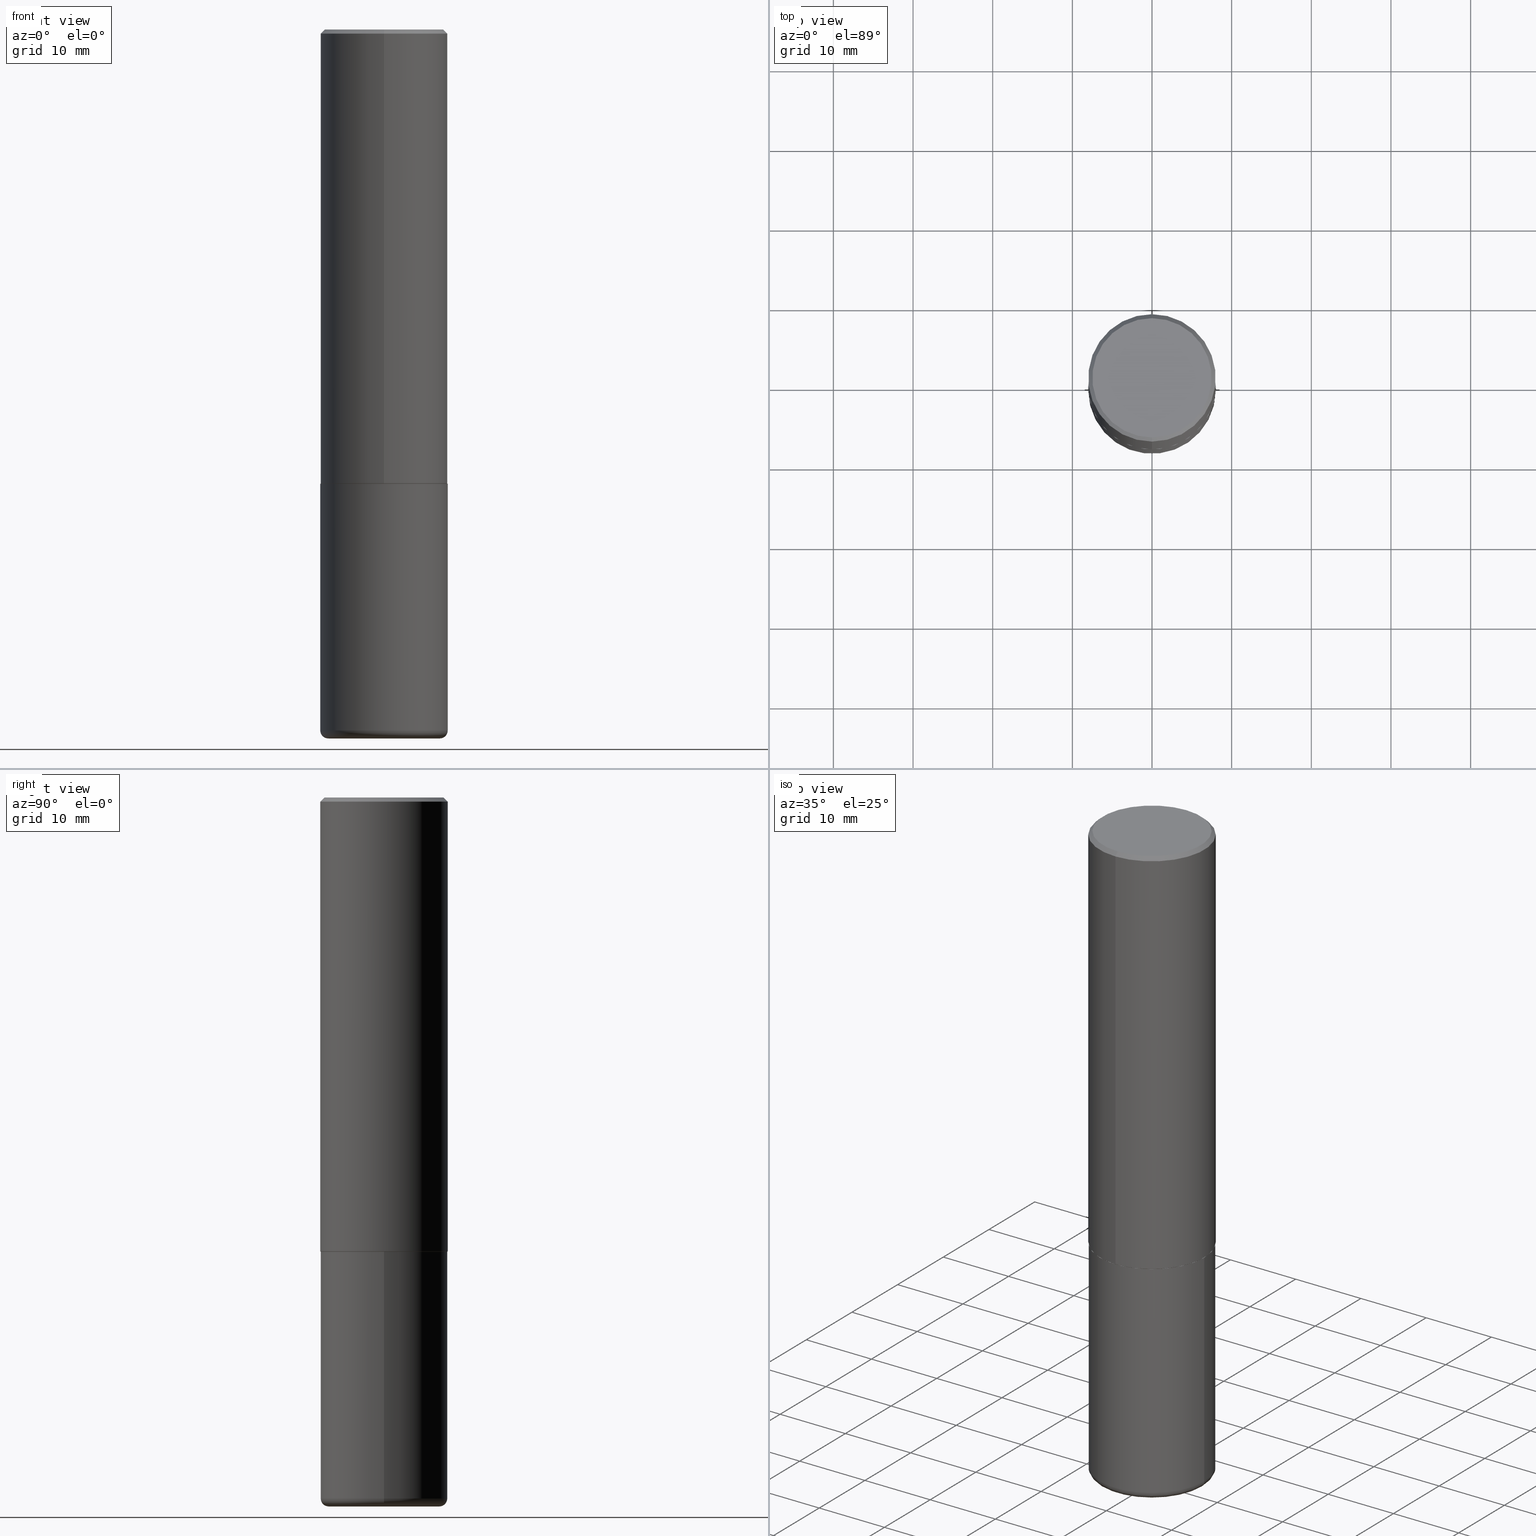
[diagram: canonical four-view strip — front | top / right | iso, engineering-drawing reading convention]
A machine part, canonical four-view strip (front | top / right | iso — engineering-drawing reading convention). The complete STEP part file that produces these views, byte-faithful:
ISO-10303-21;
HEADER;
FILE_DESCRIPTION (( 'STEP AP203' ),
    '1' );
FILE_NAME ('42687.STEP',
    '2024-03-04T01:46:12',
    ( '' ),
    ( '' ),
    'SwSTEP 2.0',
    'SolidWorks 2023',
    '' );
FILE_SCHEMA (( 'CONFIG_CONTROL_DESIGN' ));
ENDSEC;

DATA;
#1 = ADVANCED_FACE ( 'NONE', ( #273 ), #341, .T. ) ;
#2 = CARTESIAN_POINT ( 'NONE',  ( -0.3149500000000000077, -7.727880839183554507E-15, -2.244099999999999540 ) ) ;
#3 = DIRECTION ( 'NONE',  ( -6.982962677686264344E-15, -1.000000000000000000, 3.496670018878890283E-15 ) ) ;
#4 = EDGE_LOOP ( 'NONE', ( #164, #41, #327, #370 ) ) ;
#5 = AXIS2_PLACEMENT_3D ( 'NONE', #55, #384, #23 ) ;
#6 = CALENDAR_DATE ( 2024, 3, 3 ) ;
#7 = ORIENTED_EDGE ( 'NONE', *, *, #265, .F. ) ;
#8 = CYLINDRICAL_SURFACE ( 'NONE', #163, 0.3149500000000000632 ) ;
#9 = AXIS2_PLACEMENT_3D ( 'NONE', #307, #209, #336 ) ;
#10 = CARTESIAN_POINT ( 'NONE',  ( -2.192301132659548636E-15, -0.3139500000000078339, -2.244099999999998651 ) ) ;
#11 = CARTESIAN_POINT ( 'NONE',  ( -2.192301132659548636E-15, -0.3139500000000078339, -2.244099999999998651 ) ) ;
#12 = APPROVAL_DATE_TIME ( #174, #172 ) ;
#13 = DIRECTION ( 'NONE',  ( -6.982962677686265922E-15, -1.000000000000000000, 3.490574506274840456E-15 ) ) ;
#14 = AXIS2_PLACEMENT_3D ( 'NONE', #190, #411, #281 ) ;
#15 = PERSON_AND_ORGANIZATION_ROLE ( 'classification_officer' ) ;
#16 = ADVANCED_BREP_SHAPE_REPRESENTATION ( '42687', ( #211, #65, #101 ), #193 ) ;
#17 = DIRECTION ( 'NONE',  ( 2.438088387897960049E-29, -3.491481338843145188E-15, -1.000000000000000000 ) ) ;
#18 = ORIENTED_EDGE ( 'NONE', *, *, #173, .F. ) ;
#19 = EDGE_CURVE ( 'NONE', #197, #352, #405, .T. ) ;
#20 = DIRECTION ( 'NONE',  ( -6.982962677686265922E-15, -1.000000000000000000, 3.469564049740290009E-15 ) ) ;
#21 = AXIS2_PLACEMENT_3D ( 'NONE', #409, #178, #242 ) ;
#22 = EDGE_CURVE ( 'NONE', #161, #97, #153, .T. ) ;
#23 = DIRECTION ( 'NONE',  ( -6.982962677686265922E-15, -1.000000000000000000, 3.490574506274840456E-15 ) ) ;
#24 = CARTESIAN_POINT ( 'NONE',  ( 0.000000000000000000, 0.000000000000000000, 0.000000000000000000 ) ) ;
#25 = CARTESIAN_POINT ( 'NONE',  ( 0.2755500000000000171, -1.402039246425852851E-14, -3.464499999999999691 ) ) ;
#26 = AXIS2_PLACEMENT_3D ( 'NONE', #344, #279, #413 ) ;
#27 = DIRECTION ( 'NONE',  ( 2.438088387897960049E-29, -3.491481338843145188E-15, -1.000000000000000000 ) ) ;
#28 = EDGE_CURVE ( 'NONE', #244, #297, #83, .T. ) ;
#29 = DIRECTION ( 'NONE',  ( 2.446102043983075148E-29, -3.490574506274840456E-15, -1.000000000000000000 ) ) ;
#30 = ORIENTED_EDGE ( 'NONE', *, *, #39, .T. ) ;
#31 = SHAPE_DEFINITION_REPRESENTATION ( #99, #16 ) ;
#32 = DIRECTION ( 'NONE',  ( -2.446102043983075148E-29, 3.490574506274840456E-15, 1.000000000000000000 ) ) ;
#33 = APPROVAL_ROLE ( '' ) ;
#34 = CARTESIAN_POINT ( 'NONE',  ( 0.2755500000000000171, -1.415795682900894930E-14, -3.503899999999999793 ) ) ;
#35 = CONICAL_SURFACE ( 'NONE', #271, 0.3139500000000000068, 0.7853981633974141952 ) ;
#36 = ORIENTED_EDGE ( 'NONE', *, *, #154, .F. ) ;
#37 = LOCAL_TIME ( 20, 46, 12.00000000000000000, #80 ) ;
#38 = PERSON ( 'UNSPECIFIED', 'UNSPECIFIED', 'UNSPECIFIED', ('UNSPECIFIED'), ('UNSPECIFIED'), ('UNSPECIFIED') ) ;
#39 = EDGE_CURVE ( 'NONE', #314, #397, #386, .T. ) ;
#40 = DIRECTION ( 'NONE',  ( -6.982962677686265922E-15, -1.000000000000000000, 3.490574506274840456E-15 ) ) ;
#41 = ORIENTED_EDGE ( 'NONE', *, *, #199, .T. ) ;
#42 = CARTESIAN_POINT ( 'NONE',  ( 4.892204087966167602E-31, -6.981149012549705614E-17, -0.02000000000000006981 ) ) ;
#43 = PERSON_AND_ORGANIZATION ( #38, #157 ) ;
#44 = VERTEX_POINT ( 'NONE', #114 ) ;
#45 = ORIENTED_EDGE ( 'NONE', *, *, #235, .T. ) ;
#46 = DATE_TIME_ROLE ( 'creation_date' ) ;
#47 = DIRECTION ( 'NONE',  ( -2.446102043983075148E-29, 3.490574506274840456E-15, 1.000000000000000000 ) ) ;
#48 = COORDINATED_UNIVERSAL_TIME_OFFSET ( 5, 0, .BEHIND. ) ;
#49 = ORIENTED_EDGE ( 'NONE', *, *, #130, .F. ) ;
#50 = CARTESIAN_POINT ( 'NONE',  ( 8.568678149992099474E-29, -1.223380146317249786E-14, -3.503899999999999793 ) ) ;
#51 = DIRECTION ( 'NONE',  ( -2.445468806185136597E-29, 3.491481338843145583E-15, 1.000000000000000000 ) ) ;
#52 = CARTESIAN_POINT ( 'NONE',  ( -2.160713844398142179E-15, -0.3149499999999999522, -0.01999999999999896652 ) ) ;
#53 = ADVANCED_FACE ( 'NONE', ( #298 ), #239, .F. ) ;
#54 = AXIS2_PLACEMENT_3D ( 'NONE', #311, #188, #162 ) ;
#55 = CARTESIAN_POINT ( 'NONE',  ( -6.780248536777034301E-45, 9.675378321561535985E-31, 2.771858415905051370E-16 ) ) ;
#56 = ORIENTED_EDGE ( 'NONE', *, *, #261, .F. ) ;
#57 = CARTESIAN_POINT ( 'NONE',  ( 2.237854346276435590E-15, 0.3149500000000000632, -1.099356440751261260E-15 ) ) ;
#58 = ORIENTED_EDGE ( 'NONE', *, *, #342, .T. ) ;
#59 = EDGE_CURVE ( 'NONE', #197, #244, #347, .T. ) ;
#60 = DIRECTION ( 'NONE',  ( -1.000000000000000000, 7.105427357601014480E-15, 0.000000000000000000 ) ) ;
#61 = AXIS2_PLACEMENT_3D ( 'NONE', #124, #92, #382 ) ;
#62 = APPLICATION_PROTOCOL_DEFINITION ( 'international standard', 'config_control_design', 1994, #410 ) ;
#63 = DIRECTION ( 'NONE',  ( 1.000000000000000000, -6.982962677686266711E-15, 0.000000000000000000 ) ) ;
#64 = CC_DESIGN_PERSON_AND_ORGANIZATION_ASSIGNMENT ( #241, #15, ( #259 ) ) ;
#65 = MANIFOLD_SOLID_BREP ( 'Body-Move/Copy2[2]', #331 ) ;
#66 = CYLINDRICAL_SURFACE ( 'NONE', #395, 0.3149500000000000077 ) ;
#67 = ORIENTED_EDGE ( 'NONE', *, *, #261, .T. ) ;
#68 = FACE_OUTER_BOUND ( 'NONE', #249, .T. ) ;
#69 = CONICAL_SURFACE ( 'NONE', #303, 0.3149499999999998967, 0.7853981633974471688 ) ;
#70 = DIMENSIONAL_EXPONENTS ( 1.000000000000000000, 0.000000000000000000, 0.000000000000000000, 0.000000000000000000, 0.000000000000000000, 0.000000000000000000, 0.000000000000000000 ) ;
#71 = CC_DESIGN_SECURITY_CLASSIFICATION ( #259, ( #139 ) ) ;
#72 = CARTESIAN_POINT ( 'NONE',  ( 0.000000000000000000, 0.000000000000000000, 0.000000000000000000 ) ) ;
#73 = ORIENTED_EDGE ( 'NONE', *, *, #215, .T. ) ;
#74 = ADVANCED_FACE ( 'NONE', ( #81 ), #115, .F. ) ;
#75 = APPROVAL_DATE_TIME ( #146, #321 ) ;
#76 = DIRECTION ( 'NONE',  ( -2.445468806185136877E-29, 3.491481338843145188E-15, 1.000000000000000000 ) ) ;
#77 = CIRCLE ( 'NONE', #206, 0.3149500000000002853 ) ;
#78 = APPROVAL_STATUS ( 'not_yet_approved' ) ;
#79 = DIRECTION ( 'NONE',  ( -2.446102043983074868E-29, 3.490574506274840456E-15, 1.000000000000000000 ) ) ;
#80 = COORDINATED_UNIVERSAL_TIME_OFFSET ( 5, 0, .BEHIND. ) ;
#81 = FACE_OUTER_BOUND ( 'NONE', #300, .T. ) ;
#82 = DATE_AND_TIME ( #372, #37 ) ;
#83 = LINE ( 'NONE', #145, #361 ) ;
#84 = AXIS2_PLACEMENT_3D ( 'NONE', #340, #79, #13 ) ;
#85 = CIRCLE ( 'NONE', #5, 0.2949499999999996014 ) ;
#86 = APPROVAL_PERSON_ORGANIZATION ( #299, #172, #408 ) ;
#87 = CC_DESIGN_PERSON_AND_ORGANIZATION_ASSIGNMENT ( #43, #404, ( #139 ) ) ;
#88 = DIRECTION ( 'NONE',  ( 1.000000000000000000, -6.982962677686268288E-15, 0.000000000000000000 ) ) ;
#89 = CARTESIAN_POINT ( 'NONE',  ( -0.3149500000000000077, -9.858382752145642660E-15, -3.464500000000000135 ) ) ;
#90 = ORIENTED_EDGE ( 'NONE', *, *, #112, .T. ) ;
#91 = PRODUCT ( '42687', '42687', '', ( #337 ) ) ;
#92 = DIRECTION ( 'NONE',  ( -2.446102043983075148E-29, 3.490574506274840456E-15, 1.000000000000000000 ) ) ;
#93 = ORIENTED_EDGE ( 'NONE', *, *, #28, .T. ) ;
#94 = CIRCLE ( 'NONE', #149, 0.2755500000000000171 ) ;
#95 = AXIS2_PLACEMENT_3D ( 'NONE', #348, #27, #310 ) ;
#96 = FACE_OUTER_BOUND ( 'NONE', #180, .T. ) ;
#97 = VERTEX_POINT ( 'NONE', #371 ) ;
#98 = CARTESIAN_POINT ( 'NONE',  ( 8.568678149992099474E-29, -1.223380146317249786E-14, -3.503899999999999793 ) ) ;
#99 = PRODUCT_DEFINITION_SHAPE ( 'NONE', 'NONE',  #133 ) ;
#100 = CARTESIAN_POINT ( 'NONE',  ( 0.3149500000000000077, -1.003451736783519063E-14, -2.244099999999999540 ) ) ;
#101 = AXIS2_PLACEMENT_3D ( 'NONE', #391, #105, #266 ) ;
#102 =( NAMED_UNIT ( * ) PLANE_ANGLE_UNIT ( ) SI_UNIT ( $, .RADIAN. ) );
#103 = LINE ( 'NONE', #286, #416 ) ;
#104 = CC_DESIGN_DATE_AND_TIME_ASSIGNMENT ( #274, #46, ( #133 ) ) ;
#105 = DIRECTION ( 'NONE',  ( 0.000000000000000000, 0.000000000000000000, 1.000000000000000000 ) ) ;
#106 = DESIGN_CONTEXT ( 'detailed design', #111, 'design' ) ;
#107 = APPROVAL ( #223, 'UNSPECIFIED' ) ;
#108 = CARTESIAN_POINT ( 'NONE',  ( 4.892204087966167602E-31, -6.981149012549705614E-17, -0.02000000000000006981 ) ) ;
#109 = AXIS2_PLACEMENT_3D ( 'NONE', #318, #417, #256 ) ;
#110 = ORIENTED_EDGE ( 'NONE', *, *, #173, .T. ) ;
#111 = APPLICATION_CONTEXT ( 'configuration controlled 3d designs of mechanical parts and assemblies' ) ;
#112 = EDGE_CURVE ( 'NONE', #295, #161, #374, .T. ) ;
#113 = PERSON_AND_ORGANIZATION ( #38, #157 ) ;
#114 = CARTESIAN_POINT ( 'NONE',  ( -0.2755500000000000171, -1.006714185346559079E-14, -3.503899999999999793 ) ) ;
#115 = PLANE ( 'NONE',  #21 ) ;
#116 = CIRCLE ( 'NONE', #221, 0.03940000000000005997 ) ;
#117 = APPROVAL_PERSON_ORGANIZATION ( #127, #107, #33 ) ;
#118 = SECURITY_CLASSIFICATION_LEVEL ( 'unclassified' ) ;
#119 = DIRECTION ( 'NONE',  ( -4.937700262164378437E-15, -0.7071067811865208164, 0.7071067811865739960 ) ) ;
#120 = PERSON_AND_ORGANIZATION_ROLE ( 'creator' ) ;
#121 = ORIENTED_EDGE ( 'NONE', *, *, #19, .T. ) ;
#122 = CARTESIAN_POINT ( 'NONE',  ( 8.472326679028406000E-29, -1.209623709842207864E-14, -3.464500000000000135 ) ) ;
#123 = VECTOR ( 'NONE', #284, 39.37007874015748143 ) ;
#124 = CARTESIAN_POINT ( 'NONE',  ( 5.486851494858434265E-29, -7.829707675025093274E-15, -2.243099999999999206 ) ) ;
#125 = ORIENTED_EDGE ( 'NONE', *, *, #235, .F. ) ;
#126 = DIRECTION ( 'NONE',  ( -6.982962677686266711E-15, -1.000000000000000000, 3.491481338843145583E-15 ) ) ;
#127 = PERSON_AND_ORGANIZATION ( #38, #157 ) ;
#128 = CARTESIAN_POINT ( 'NONE',  ( 2.199284095337288688E-15, 0.3149499999999997857, -0.02000000000000116962 ) ) ;
#129 = ORIENTED_EDGE ( 'NONE', *, *, #182, .F. ) ;
#130 = EDGE_CURVE ( 'NONE', #272, #285, #245, .T. ) ;
#131 = AXIS2_PLACEMENT_3D ( 'NONE', #98, #134, #192 ) ;
#132 = LINE ( 'NONE', #160, #123 ) ;
#133 = PRODUCT_DEFINITION ( 'UNKNOWN', '', #139, #106 ) ;
#134 = DIRECTION ( 'NONE',  ( -2.445468806185136597E-29, 3.491481338843145583E-15, 1.000000000000000000 ) ) ;
#135 = FACE_OUTER_BOUND ( 'NONE', #4, .T. ) ;
#136 = AXIS2_PLACEMENT_3D ( 'NONE', #338, #47, #246 ) ;
#137 = AXIS2_PLACEMENT_3D ( 'NONE', #288, #231, #396 ) ;
#138 = CARTESIAN_POINT ( 'NONE',  ( 5.489297596902418618E-29, -7.833198249531369174E-15, -2.244099999999999540 ) ) ;
#139 = PRODUCT_DEFINITION_FORMATION_WITH_SPECIFIED_SOURCE ( 'ANY', '', #91, .NOT_KNOWN. ) ;
#140 = EDGE_LOOP ( 'NONE', ( #7, #378 ) ) ;
#141 =( LENGTH_UNIT ( ) NAMED_UNIT ( * ) SI_UNIT ( $, .METRE. ) );
#142 = FACE_OUTER_BOUND ( 'NONE', #238, .T. ) ;
#143 = ORIENTED_EDGE ( 'NONE', *, *, #240, .F. ) ;
#144 = ADVANCED_FACE ( 'NONE', ( #302 ), #150, .F. ) ;
#145 = CARTESIAN_POINT ( 'NONE',  ( 0.3149500000000000077, -2.199284095337289871E-15, 1.535751875536930130E-29 ) ) ;
#146 = DATE_AND_TIME ( #179, #291 ) ;
#147 = DIRECTION ( 'NONE',  ( -2.445468806185136597E-29, 3.491481338843145583E-15, 1.000000000000000000 ) ) ;
#148 = PERSON_AND_ORGANIZATION ( #38, #157 ) ;
#149 = AXIS2_PLACEMENT_3D ( 'NONE', #50, #375, #88 ) ;
#150 = PLANE ( 'NONE',  #167 ) ;
#151 = ORIENTED_EDGE ( 'NONE', *, *, #59, .T. ) ;
#152 = COORDINATED_UNIVERSAL_TIME_OFFSET ( 5, 0, .BEHIND. ) ;
#153 = LINE ( 'NONE', #11, #282 ) ;
#154 = EDGE_CURVE ( 'NONE', #44, #355, #94, .T. ) ;
#155 = DIRECTION ( 'NONE',  ( -2.446102043983075148E-29, 3.490574506274840456E-15, 1.000000000000000000 ) ) ;
#156 = VECTOR ( 'NONE', #398, 39.37007874015748143 ) ;
#157 = ORGANIZATION ( 'UNSPECIFIED', 'UNSPECIFIED', '' ) ;
#158 = CC_DESIGN_APPROVAL ( #321, ( #133 ) ) ;
#159 = CARTESIAN_POINT ( 'NONE',  ( 2.199284095337288688E-15, 0.3149499999999997857, -0.02000000000000116962 ) ) ;
#160 = CARTESIAN_POINT ( 'NONE',  ( -2.160713844398142179E-15, -0.3149499999999999522, -0.01999999999999896652 ) ) ;
#161 = VERTEX_POINT ( 'NONE', #10 ) ;
#162 = DIRECTION ( 'NONE',  ( 1.000000000000000000, -6.982962677686266711E-15, 0.000000000000000000 ) ) ;
#163 = AXIS2_PLACEMENT_3D ( 'NONE', #165, #232, #40 ) ;
#164 = ORIENTED_EDGE ( 'NONE', *, *, #187, .F. ) ;
#165 = CARTESIAN_POINT ( 'NONE',  ( 0.000000000000000000, 0.000000000000000000, 0.000000000000000000 ) ) ;
#166 = LENGTH_MEASURE_WITH_UNIT ( LENGTH_MEASURE( 0.02539999999999999897 ), #141 );
#167 = AXIS2_PLACEMENT_3D ( 'NONE', #210, #17, #216 ) ;
#168 = CIRCLE ( 'NONE', #26, 0.3139500000000000068 ) ;
#169 = COORDINATED_UNIVERSAL_TIME_OFFSET ( 5, 0, .BEHIND. ) ;
#170 = ORIENTED_EDGE ( 'NONE', *, *, #350, .F. ) ;
#171 = FACE_OUTER_BOUND ( 'NONE', #280, .T. ) ;
#172 = APPROVAL ( #177, 'UNSPECIFIED' ) ;
#173 = EDGE_CURVE ( 'NONE', #360, #272, #268, .T. ) ;
#174 = DATE_AND_TIME ( #301, #403 ) ;
#175 = ORIENTED_EDGE ( 'NONE', *, *, #182, .T. ) ;
#176 = EDGE_CURVE ( 'NONE', #97, #360, #230, .T. ) ;
#177 = APPROVAL_STATUS ( 'not_yet_approved' ) ;
#178 = DIRECTION ( 'NONE',  ( 2.446102043983074868E-29, -3.490574506274840456E-15, -1.000000000000000000 ) ) ;
#179 = CALENDAR_DATE ( 2024, 3, 3 ) ;
#180 = EDGE_LOOP ( 'NONE', ( #67, #45, #143, #220 ) ) ;
#181 = ORIENTED_EDGE ( 'NONE', *, *, #39, .F. ) ;
#182 = EDGE_CURVE ( 'NONE', #297, #352, #247, .T. ) ;
#183 = CARTESIAN_POINT ( 'NONE',  ( 2.129454468560424995E-15, 0.2949499999999996014, -7.523591090352575511E-16 ) ) ;
#184 = DIRECTION ( 'NONE',  ( -2.446102043983075148E-29, 3.490574506274840456E-15, 1.000000000000000000 ) ) ;
#185 = CC_DESIGN_PERSON_AND_ORGANIZATION_ASSIGNMENT ( #148, #203, ( #139 ) ) ;
#186 = VECTOR ( 'NONE', #248, 39.37007874015748143 ) ;
#187 = EDGE_CURVE ( 'NONE', #397, #314, #85, .T. ) ;
#188 = DIRECTION ( 'NONE',  ( -2.445468806185136597E-29, 3.491481338843145583E-15, 1.000000000000000000 ) ) ;
#189 = EDGE_LOOP ( 'NONE', ( #56, #36 ) ) ;
#190 = CARTESIAN_POINT ( 'NONE',  ( 5.489297596902418618E-29, -7.833198249531369174E-15, -2.244099999999999540 ) ) ;
#191 = ORIENTED_EDGE ( 'NONE', *, *, #22, .F. ) ;
#192 = DIRECTION ( 'NONE',  ( 1.000000000000000000, -6.982962677686268288E-15, 0.000000000000000000 ) ) ;
#193 =( GEOMETRIC_REPRESENTATION_CONTEXT ( 3 ) GLOBAL_UNCERTAINTY_ASSIGNED_CONTEXT ( ( #343 ) ) GLOBAL_UNIT_ASSIGNED_CONTEXT ( ( #196, #102, #293 ) ) REPRESENTATION_CONTEXT ( 'NONE', 'WORKASPACE' ) );
#194 = CARTESIAN_POINT ( 'NONE',  ( 4.892204087966167602E-31, -6.981149012549705614E-17, -0.02000000000000006981 ) ) ;
#195 = EDGE_LOOP ( 'NONE', ( #317, #181, #225, #229 ) ) ;
#196 =( CONVERSION_BASED_UNIT ( 'INCH', #166 ) LENGTH_UNIT ( ) NAMED_UNIT ( #70 ) );
#197 = VERTEX_POINT ( 'NONE', #89 ) ;
#198 = CIRCLE ( 'NONE', #109, 0.3149500000000000077 ) ;
#199 = EDGE_CURVE ( 'NONE', #397, #285, #132, .T. ) ;
#200 = EDGE_LOOP ( 'NONE', ( #262, #58, #323, #191 ) ) ;
#201 = ADVANCED_FACE ( 'NONE', ( #219 ), #351, .T. ) ;
#202 = DIRECTION ( 'NONE',  ( 1.000000000000000000, -6.982962677686266711E-15, 4.876176775795936353E-29 ) ) ;
#203 = PERSON_AND_ORGANIZATION_ROLE ( 'creator' ) ;
#204 = AXIS2_PLACEMENT_3D ( 'NONE', #269, #51, #309 ) ;
#205 = COORDINATED_UNIVERSAL_TIME_OFFSET ( 5, 0, .BEHIND. ) ;
#206 = AXIS2_PLACEMENT_3D ( 'NONE', #228, #354, #20 ) ;
#207 = DIRECTION ( 'NONE',  ( -6.982962677686265922E-15, -1.000000000000000000, 3.490574506274840456E-15 ) ) ;
#208 = EDGE_CURVE ( 'NONE', #314, #272, #226, .T. ) ;
#209 = DIRECTION ( 'NONE',  ( -2.446102043983075148E-29, 3.490574506274840456E-15, 1.000000000000000000 ) ) ;
#210 = CARTESIAN_POINT ( 'NONE',  ( 5.487876547960064752E-29, -7.835233272497900762E-15, -2.244099999999999540 ) ) ;
#211 = MANIFOLD_SOLID_BREP ( 'Body-Move/Copy2[1]', #276 ) ;
#212 = DATE_TIME_ROLE ( 'classification_date' ) ;
#213 = CARTESIAN_POINT ( 'NONE',  ( -6.780248536777034301E-45, 9.675378321561535985E-31, 2.771858415905051370E-16 ) ) ;
#214 = CONICAL_SURFACE ( 'NONE', #339, 0.3149499999999998967, 0.7853981633974471688 ) ;
#215 = EDGE_CURVE ( 'NONE', #355, #244, #283, .T. ) ;
#216 = DIRECTION ( 'NONE',  ( -1.000000000000000000, 6.982962677686265922E-15, -4.876176775795935793E-29 ) ) ;
#217 = LINE ( 'NONE', #377, #255 ) ;
#218 = ADVANCED_FACE ( 'NONE', ( #412 ), #381, .T. ) ;
#219 = FACE_OUTER_BOUND ( 'NONE', #189, .T. ) ;
#220 = ORIENTED_EDGE ( 'NONE', *, *, #215, .F. ) ;
#221 = AXIS2_PLACEMENT_3D ( 'NONE', #418, #278, #60 ) ;
#222 = CIRCLE ( 'NONE', #312, 0.3149500000000000077 ) ;
#223 = APPROVAL_STATUS ( 'not_yet_approved' ) ;
#224 = DIRECTION ( 'NONE',  ( 1.000000000000000000, -6.982962677686268288E-15, 4.883557194083114022E-29 ) ) ;
#225 = ORIENTED_EDGE ( 'NONE', *, *, #208, .T. ) ;
#226 = LINE ( 'NONE', #159, #186 ) ;
#227 = ADVANCED_FACE ( 'NONE', ( #96 ), #290, .T. ) ;
#228 = CARTESIAN_POINT ( 'NONE',  ( 5.486851494858434265E-29, -7.829707675025093274E-15, -2.243099999999999206 ) ) ;
#229 = ORIENTED_EDGE ( 'NONE', *, *, #130, .T. ) ;
#230 = CIRCLE ( 'NONE', #61, 0.3149500000000002853 ) ;
#231 = DIRECTION ( 'NONE',  ( -2.445468806185136597E-29, 3.491481338843145583E-15, 1.000000000000000000 ) ) ;
#232 = DIRECTION ( 'NONE',  ( -2.446102043983075148E-29, 3.490574506274840456E-15, 1.000000000000000000 ) ) ;
#233 = ORIENTED_EDGE ( 'NONE', *, *, #306, .T. ) ;
#234 = FACE_OUTER_BOUND ( 'NONE', #195, .T. ) ;
#235 = EDGE_CURVE ( 'NONE', #44, #197, #116, .T. ) ;
#236 = AXIS2_PLACEMENT_3D ( 'NONE', #25, #126, #316 ) ;
#237 = DIRECTION ( 'NONE',  ( -2.445468806185136597E-29, 3.491481338843145583E-15, 1.000000000000000000 ) ) ;
#238 = EDGE_LOOP ( 'NONE', ( #125, #366, #73, #358 ) ) ;
#239 = PLANE ( 'NONE',  #84 ) ;
#240 = EDGE_CURVE ( 'NONE', #244, #197, #198, .T. ) ;
#241 = PERSON_AND_ORGANIZATION ( #38, #157 ) ;
#242 = DIRECTION ( 'NONE',  ( 6.982962677686265922E-15, 1.000000000000000000, -3.490574506274840456E-15 ) ) ;
#243 = CALENDAR_DATE ( 2024, 3, 3 ) ;
#244 = VERTEX_POINT ( 'NONE', #253 ) ;
#245 = CIRCLE ( 'NONE', #136, 0.3149499999999998967 ) ;
#246 = DIRECTION ( 'NONE',  ( -6.982962677686264344E-15, -1.000000000000000000, 3.496670018878890283E-15 ) ) ;
#247 = CIRCLE ( 'NONE', #54, 0.3149500000000000077 ) ;
#248 = DIRECTION ( 'NONE',  ( 4.937700262164541731E-15, 0.7071067811865442421, -0.7071067811865507924 ) ) ;
#249 = EDGE_LOOP ( 'NONE', ( #18, #233, #264, #49 ) ) ;
#250 = CYLINDRICAL_SURFACE ( 'NONE', #349, 0.3149500000000000632 ) ;
#251 = ADVANCED_FACE ( 'NONE', ( #383 ), #250, .T. ) ;
#252 = ORIENTED_EDGE ( 'NONE', *, *, #306, .F. ) ;
#253 = CARTESIAN_POINT ( 'NONE',  ( 0.3149500000000000077, -1.429552119375937009E-14, -3.464500000000000135 ) ) ;
#254 = CC_DESIGN_DATE_AND_TIME_ASSIGNMENT ( #82, #212, ( #259 ) ) ;
#255 = VECTOR ( 'NONE', #184, 39.37007874015748143 ) ;
#256 = DIRECTION ( 'NONE',  ( 1.000000000000000000, -6.982962677686269866E-15, 0.000000000000000000 ) ) ;
#257 = DIRECTION ( 'NONE',  ( -2.445468806185136597E-29, 3.491481338843145583E-15, 1.000000000000000000 ) ) ;
#258 = ORIENTED_EDGE ( 'NONE', *, *, #28, .F. ) ;
#259 = SECURITY_CLASSIFICATION ( '', '', #118 ) ;
#260 = DIRECTION ( 'NONE',  ( -6.982962677686266711E-15, -1.000000000000000000, 3.480615376543096919E-15 ) ) ;
#261 = EDGE_CURVE ( 'NONE', #355, #44, #356, .T. ) ;
#262 = ORIENTED_EDGE ( 'NONE', *, *, #265, .T. ) ;
#263 = APPROVAL_DATE_TIME ( #292, #107 ) ;
#264 = ORIENTED_EDGE ( 'NONE', *, *, #287, .T. ) ;
#265 = EDGE_CURVE ( 'NONE', #161, #295, #168, .T. ) ;
#266 = DIRECTION ( 'NONE',  ( 1.000000000000000000, 0.000000000000000000, 0.000000000000000000 ) ) ;
#267 = TOROIDAL_SURFACE ( 'NONE', #137, 0.2755500000000000171, 0.03940000000000005997 ) ;
#268 = LINE ( 'NONE', #57, #380 ) ;
#269 = CARTESIAN_POINT ( 'NONE',  ( 0.000000000000000000, 0.000000000000000000, 0.000000000000000000 ) ) ;
#270 = AXIS2_PLACEMENT_3D ( 'NONE', #122, #147, #400 ) ;
#271 = AXIS2_PLACEMENT_3D ( 'NONE', #138, #324, #260 ) ;
#272 = VERTEX_POINT ( 'NONE', #128 ) ;
#273 = FACE_OUTER_BOUND ( 'NONE', #394, .T. ) ;
#274 = DATE_AND_TIME ( #243, #313 ) ;
#275 = DIRECTION ( 'NONE',  ( -2.446102043983075148E-29, 3.490574506274840456E-15, 1.000000000000000000 ) ) ;
#276 = CLOSED_SHELL ( 'NONE', ( #1, #227, #144, #414, #407, #201 ) ) ;
#277 = DIRECTION ( 'NONE',  ( -6.982962677686265922E-15, -1.000000000000000000, 3.490574506274840456E-15 ) ) ;
#278 = DIRECTION ( 'NONE',  ( 7.105427357601001859E-15, 1.000000000000000000, -3.491481338843145583E-15 ) ) ;
#279 = DIRECTION ( 'NONE',  ( -2.446102043983075148E-29, 3.490574506274840456E-15, 1.000000000000000000 ) ) ;
#280 = EDGE_LOOP ( 'NONE', ( #368, #151, #93, #170 ) ) ;
#281 = DIRECTION ( 'NONE',  ( -6.982962677686266711E-15, -1.000000000000000000, 3.480615376543096919E-15 ) ) ;
#282 = VECTOR ( 'NONE', #119, 39.37007874015748854 ) ;
#283 = CIRCLE ( 'NONE', #236, 0.03940000000000005997 ) ;
#284 = DIRECTION ( 'NONE',  ( -4.851104656540957964E-15, -0.7071067811865491270, -0.7071067811865459074 ) ) ;
#285 = VERTEX_POINT ( 'NONE', #52 ) ;
#286 = CARTESIAN_POINT ( 'NONE',  ( 2.230748918918889014E-15, 0.3139499999999921798, -2.244100000000000872 ) ) ;
#287 = EDGE_CURVE ( 'NONE', #97, #285, #217, .T. ) ;
#288 = CARTESIAN_POINT ( 'NONE',  ( 8.472326679028403758E-29, -1.209623709842207707E-14, -3.464499999999999691 ) ) ;
#289 = ORIENTED_EDGE ( 'NONE', *, *, #315, .F. ) ;
#290 = TOROIDAL_SURFACE ( 'NONE', #362, 0.2755500000000000171, 0.03940000000000005997 ) ;
#291 = LOCAL_TIME ( 20, 46, 12.00000000000000000, #152 ) ;
#292 = DATE_AND_TIME ( #6, #363 ) ;
#293 =( NAMED_UNIT ( * ) SI_UNIT ( $, .STERADIAN. ) SOLID_ANGLE_UNIT ( ) );
#294 = EDGE_LOOP ( 'NONE', ( #406, #110, #289, #319 ) ) ;
#295 = VERTEX_POINT ( 'NONE', #320 ) ;
#296 = CARTESIAN_POINT ( 'NONE',  ( -2.092108864420426059E-15, -0.2949499999999996014, 1.306730792216267924E-15 ) ) ;
#297 = VERTEX_POINT ( 'NONE', #100 ) ;
#298 = FACE_OUTER_BOUND ( 'NONE', #140, .T. ) ;
#299 = PERSON_AND_ORGANIZATION ( #38, #157 ) ;
#300 = EDGE_LOOP ( 'NONE', ( #30, #415 ) ) ;
#301 = CALENDAR_DATE ( 2024, 3, 3 ) ;
#302 = FACE_OUTER_BOUND ( 'NONE', #390, .T. ) ;
#303 = AXIS2_PLACEMENT_3D ( 'NONE', #194, #389, #325 ) ;
#304 = PERSON_AND_ORGANIZATION ( #38, #157 ) ;
#305 = CC_DESIGN_APPROVAL ( #107, ( #259 ) ) ;
#306 = EDGE_CURVE ( 'NONE', #360, #97, #77, .T. ) ;
#307 = CARTESIAN_POINT ( 'NONE',  ( 5.489297596902418618E-29, -7.833198249531369174E-15, -2.244099999999999540 ) ) ;
#308 = APPLICATION_PROTOCOL_DEFINITION ( 'international standard', 'config_control_design', 1994, #111 ) ;
#309 = DIRECTION ( 'NONE',  ( 1.000000000000000000, -6.982962677686266711E-15, 4.876176775795936353E-29 ) ) ;
#310 = DIRECTION ( 'NONE',  ( -1.000000000000000000, 6.982962677686265922E-15, -4.876176775795935793E-29 ) ) ;
#311 = CARTESIAN_POINT ( 'NONE',  ( 5.487876547960064752E-29, -7.835233272497900762E-15, -2.244099999999999540 ) ) ;
#312 = AXIS2_PLACEMENT_3D ( 'NONE', #322, #357, #63 ) ;
#313 = LOCAL_TIME ( 20, 46, 12.00000000000000000, #48 ) ;
#314 = VERTEX_POINT ( 'NONE', #183 ) ;
#315 = EDGE_CURVE ( 'NONE', #285, #272, #401, .T. ) ;
#316 = DIRECTION ( 'NONE',  ( 1.000000000000000000, -6.982962677686267499E-15, 0.000000000000000000 ) ) ;
#317 = ORIENTED_EDGE ( 'NONE', *, *, #199, .F. ) ;
#318 = CARTESIAN_POINT ( 'NONE',  ( 8.472326679028406000E-29, -1.209623709842207864E-14, -3.464500000000000135 ) ) ;
#319 = ORIENTED_EDGE ( 'NONE', *, *, #287, .F. ) ;
#320 = CARTESIAN_POINT ( 'NONE',  ( 2.234301632597690306E-15, 0.3139499999999921798, -2.244100000000000872 ) ) ;
#321 = APPROVAL ( #78, 'UNSPECIFIED' ) ;
#322 = CARTESIAN_POINT ( 'NONE',  ( 5.487876547960064752E-29, -7.835233272497900762E-15, -2.244099999999999540 ) ) ;
#323 = ORIENTED_EDGE ( 'NONE', *, *, #176, .F. ) ;
#324 = DIRECTION ( 'NONE',  ( -2.446102043983075148E-29, 3.490574506274840456E-15, 1.000000000000000000 ) ) ;
#325 = DIRECTION ( 'NONE',  ( 6.982962677686264344E-15, 1.000000000000000000, -3.496670018878890283E-15 ) ) ;
#326 = ADVANCED_FACE ( 'NONE', ( #364 ), #35, .T. ) ;
#327 = ORIENTED_EDGE ( 'NONE', *, *, #315, .T. ) ;
#328 = APPROVAL_ROLE ( '' ) ;
#329 = ORIENTED_EDGE ( 'NONE', *, *, #342, .F. ) ;
#330 = CC_DESIGN_PERSON_AND_ORGANIZATION_ASSIGNMENT ( #367, #335, ( #91 ) ) ;
#331 = CLOSED_SHELL ( 'NONE', ( #218, #251, #369, #334, #376, #326, #53, #74 ) ) ;
#332 = ORIENTED_EDGE ( 'NONE', *, *, #350, .T. ) ;
#333 = PRODUCT_RELATED_PRODUCT_CATEGORY ( 'detail', '', ( #91 ) ) ;
#334 = ADVANCED_FACE ( 'NONE', ( #234 ), #69, .T. ) ;
#335 = PERSON_AND_ORGANIZATION_ROLE ( 'design_owner' ) ;
#336 = DIRECTION ( 'NONE',  ( -6.982962677686266711E-15, -1.000000000000000000, 3.480615376543096919E-15 ) ) ;
#337 = MECHANICAL_CONTEXT ( 'NONE', #410, 'mechanical' ) ;
#338 = CARTESIAN_POINT ( 'NONE',  ( 4.892204087966167602E-31, -6.981149012549705614E-17, -0.02000000000000006981 ) ) ;
#339 = AXIS2_PLACEMENT_3D ( 'NONE', #42, #29, #359 ) ;
#340 = CARTESIAN_POINT ( 'NONE',  ( 5.489297596902418618E-29, -7.833198249531369174E-15, -2.244099999999999540 ) ) ;
#341 = CYLINDRICAL_SURFACE ( 'NONE', #204, 0.3149500000000000077 ) ;
#342 = EDGE_CURVE ( 'NONE', #295, #360, #103, .T. ) ;
#343 = UNCERTAINTY_MEASURE_WITH_UNIT (LENGTH_MEASURE( 1.000000000000000082E-05 ), #196, 'distance_accuracy_value', 'NONE');
#344 = CARTESIAN_POINT ( 'NONE',  ( 5.489297596902418618E-29, -7.833198249531369174E-15, -2.244099999999999540 ) ) ;
#345 = ORIENTED_EDGE ( 'NONE', *, *, #240, .T. ) ;
#346 = AXIS2_PLACEMENT_3D ( 'NONE', #213, #275, #207 ) ;
#347 = CIRCLE ( 'NONE', #270, 0.3149500000000000077 ) ;
#348 = CARTESIAN_POINT ( 'NONE',  ( 8.568678149992099474E-29, -1.223380146317249786E-14, -3.503899999999999793 ) ) ;
#349 = AXIS2_PLACEMENT_3D ( 'NONE', #24, #379, #277 ) ;
#350 = EDGE_CURVE ( 'NONE', #352, #297, #222, .T. ) ;
#351 = PLANE ( 'NONE',  #95 ) ;
#352 = VERTEX_POINT ( 'NONE', #2 ) ;
#353 = CARTESIAN_POINT ( 'NONE',  ( 8.472326679028403758E-29, -1.209623709842207707E-14, -3.464499999999999691 ) ) ;
#354 = DIRECTION ( 'NONE',  ( -2.446102043983075148E-29, 3.490574506274840456E-15, 1.000000000000000000 ) ) ;
#355 = VERTEX_POINT ( 'NONE', #34 ) ;
#356 = CIRCLE ( 'NONE', #131, 0.2755500000000000171 ) ;
#357 = DIRECTION ( 'NONE',  ( -2.445468806185136597E-29, 3.491481338843145583E-15, 1.000000000000000000 ) ) ;
#358 = ORIENTED_EDGE ( 'NONE', *, *, #59, .F. ) ;
#359 = DIRECTION ( 'NONE',  ( 6.982962677686264344E-15, 1.000000000000000000, -3.496670018878890283E-15 ) ) ;
#360 = VERTEX_POINT ( 'NONE', #385 ) ;
#361 = VECTOR ( 'NONE', #76, 39.37007874015748143 ) ;
#362 = AXIS2_PLACEMENT_3D ( 'NONE', #353, #257, #224 ) ;
#363 = LOCAL_TIME ( 20, 46, 12.00000000000000000, #169 ) ;
#364 = FACE_OUTER_BOUND ( 'NONE', #392, .T. ) ;
#365 = ORIENTED_EDGE ( 'NONE', *, *, #22, .T. ) ;
#366 = ORIENTED_EDGE ( 'NONE', *, *, #154, .T. ) ;
#367 = PERSON_AND_ORGANIZATION ( #38, #157 ) ;
#368 = ORIENTED_EDGE ( 'NONE', *, *, #19, .F. ) ;
#369 = ADVANCED_FACE ( 'NONE', ( #135 ), #214, .T. ) ;
#370 = ORIENTED_EDGE ( 'NONE', *, *, #208, .F. ) ;
#371 = CARTESIAN_POINT ( 'NONE',  ( -2.199284095337236228E-15, -0.3149500000000081124, -2.243099999999998317 ) ) ;
#372 = CALENDAR_DATE ( 2024, 3, 3 ) ;
#373 = CARTESIAN_POINT ( 'NONE',  ( -0.3149500000000000077, 2.237854346276435590E-15, -1.549218606675782676E-29 ) ) ;
#374 = CIRCLE ( 'NONE', #9, 0.3139500000000000068 ) ;
#375 = DIRECTION ( 'NONE',  ( -2.445468806185136597E-29, 3.491481338843145583E-15, 1.000000000000000000 ) ) ;
#376 = ADVANCED_FACE ( 'NONE', ( #68 ), #8, .T. ) ;
#377 = CARTESIAN_POINT ( 'NONE',  ( -2.199284095337289871E-15, -0.3149500000000000632, 1.099356440751261260E-15 ) ) ;
#378 = ORIENTED_EDGE ( 'NONE', *, *, #112, .F. ) ;
#379 = DIRECTION ( 'NONE',  ( -2.446102043983075148E-29, 3.490574506274840456E-15, 1.000000000000000000 ) ) ;
#380 = VECTOR ( 'NONE', #155, 39.37007874015748143 ) ;
#381 = CONICAL_SURFACE ( 'NONE', #14, 0.3139500000000000068, 0.7853981633974141952 ) ;
#382 = DIRECTION ( 'NONE',  ( -6.982962677686265922E-15, -1.000000000000000000, 3.469564049740290009E-15 ) ) ;
#383 = FACE_OUTER_BOUND ( 'NONE', #294, .T. ) ;
#384 = DIRECTION ( 'NONE',  ( -2.446102043983075148E-29, 3.490574506274840456E-15, 1.000000000000000000 ) ) ;
#385 = CARTESIAN_POINT ( 'NONE',  ( 2.237854346276463595E-15, 0.3149499999999924027, -2.243100000000000538 ) ) ;
#386 = CIRCLE ( 'NONE', #346, 0.2949499999999996014 ) ;
#387 = APPROVAL_PERSON_ORGANIZATION ( #113, #321, #328 ) ;
#388 = CC_DESIGN_APPROVAL ( #172, ( #139 ) ) ;
#389 = DIRECTION ( 'NONE',  ( 2.446102043983075148E-29, -3.490574506274840456E-15, -1.000000000000000000 ) ) ;
#390 = EDGE_LOOP ( 'NONE', ( #175, #332 ) ) ;
#391 = CARTESIAN_POINT ( 'NONE',  ( 0.000000000000000000, 0.000000000000000000, 0.000000000000000000 ) ) ;
#392 = EDGE_LOOP ( 'NONE', ( #329, #90, #365, #252 ) ) ;
#393 = DIRECTION ( 'NONE',  ( 5.024295867787889629E-15, 0.7071067811865257013, 0.7071067811865691111 ) ) ;
#394 = EDGE_LOOP ( 'NONE', ( #345, #121, #129, #258 ) ) ;
#395 = AXIS2_PLACEMENT_3D ( 'NONE', #72, #237, #202 ) ;
#396 = DIRECTION ( 'NONE',  ( 1.000000000000000000, -6.982962677686268288E-15, 4.883557194083114022E-29 ) ) ;
#397 = VERTEX_POINT ( 'NONE', #296 ) ;
#398 = DIRECTION ( 'NONE',  ( -2.445468806185136877E-29, 3.491481338843145188E-15, 1.000000000000000000 ) ) ;
#399 = CC_DESIGN_PERSON_AND_ORGANIZATION_ASSIGNMENT ( #304, #120, ( #133 ) ) ;
#400 = DIRECTION ( 'NONE',  ( 1.000000000000000000, -6.982962677686269866E-15, 0.000000000000000000 ) ) ;
#401 = CIRCLE ( 'NONE', #402, 0.3149499999999998967 ) ;
#402 = AXIS2_PLACEMENT_3D ( 'NONE', #108, #32, #3 ) ;
#403 = LOCAL_TIME ( 20, 46, 12.00000000000000000, #205 ) ;
#404 = PERSON_AND_ORGANIZATION_ROLE ( 'design_supplier' ) ;
#405 = LINE ( 'NONE', #373, #156 ) ;
#406 = ORIENTED_EDGE ( 'NONE', *, *, #176, .T. ) ;
#407 = ADVANCED_FACE ( 'NONE', ( #142 ), #267, .T. ) ;
#408 = APPROVAL_ROLE ( '' ) ;
#409 = CARTESIAN_POINT ( 'NONE',  ( 2.059624841783561302E-15, 0.2949499999999996014, -8.909520298305101196E-16 ) ) ;
#410 = APPLICATION_CONTEXT ( 'configuration controlled 3d designs of mechanical parts and assemblies' ) ;
#411 = DIRECTION ( 'NONE',  ( -2.446102043983075148E-29, 3.490574506274840456E-15, 1.000000000000000000 ) ) ;
#412 = FACE_OUTER_BOUND ( 'NONE', #200, .T. ) ;
#413 = DIRECTION ( 'NONE',  ( -6.982962677686266711E-15, -1.000000000000000000, 3.480615376543096919E-15 ) ) ;
#414 = ADVANCED_FACE ( 'NONE', ( #171 ), #66, .T. ) ;
#415 = ORIENTED_EDGE ( 'NONE', *, *, #187, .T. ) ;
#416 = VECTOR ( 'NONE', #393, 39.37007874015748854 ) ;
#417 = DIRECTION ( 'NONE',  ( -2.445468806185136597E-29, 3.491481338843145583E-15, 1.000000000000000000 ) ) ;
#418 = CARTESIAN_POINT ( 'NONE',  ( -0.2755500000000000171, -1.013833659003512128E-14, -3.464499999999999691 ) ) ;
ENDSEC;
END-ISO-10303-21;
